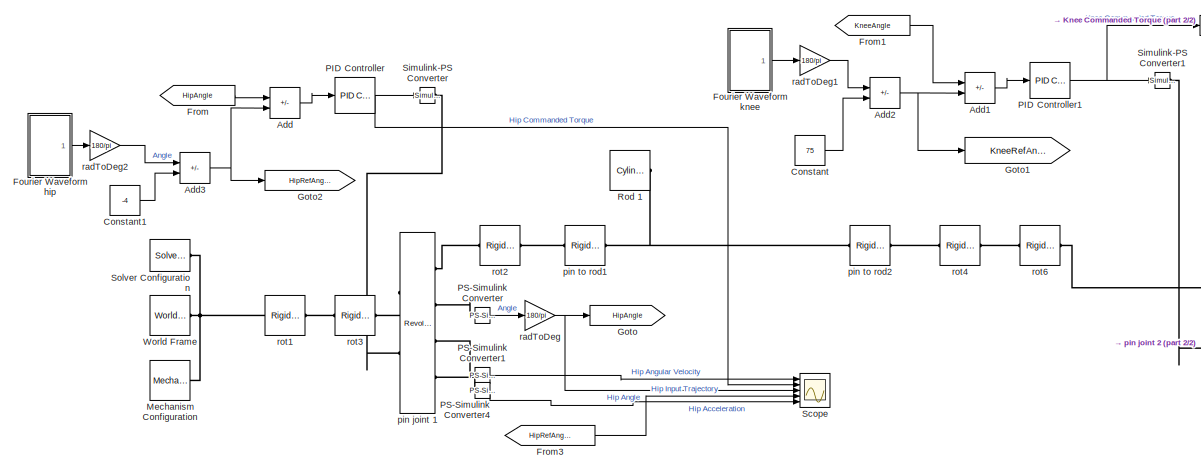
[diagram: root canvas - part 1/2, most of the canvas]
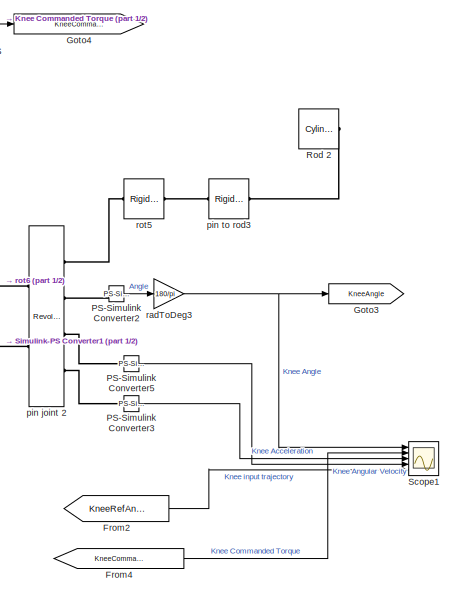
[diagram: root canvas - part 2/2, right side, full height]
MODEL slx_d215eb2f79ce
KIND model
CONFIG AbsTol = 1e-3
CONFIG EnableMultiTasking = on
CONFIG FixedStep = auto
CONFIG MaxStep = 1/60
CONFIG MinStep = auto
CONFIG RelTol = 1e-3
CONFIG SampleTimeConstraint = Unconstrained
CONFIG SolverName = VariableStepAuto
CONFIG StartTime = 0.0
CONFIG StopTime = 10.0
BLOCK [Sum] Add
  IconShape = rectangular
  Inputs = +-
  Ports = [2, 1]
BLOCK [Sum] Add1
  IconShape = rectangular
  Inputs = +-
  Ports = [2, 1]
BLOCK [Sum] Add2
  IconShape = rectangular
  Inputs = +-
  Ports = [2, 1]
BLOCK [Sum] Add3
  IconShape = rectangular
  Inputs = +-
  Ports = [2, 1]
BLOCK [Constant] Constant
  SampleTime = -1
  Value = 75
BLOCK [Constant] Constant1
  SampleTime = -1
  Value = -4
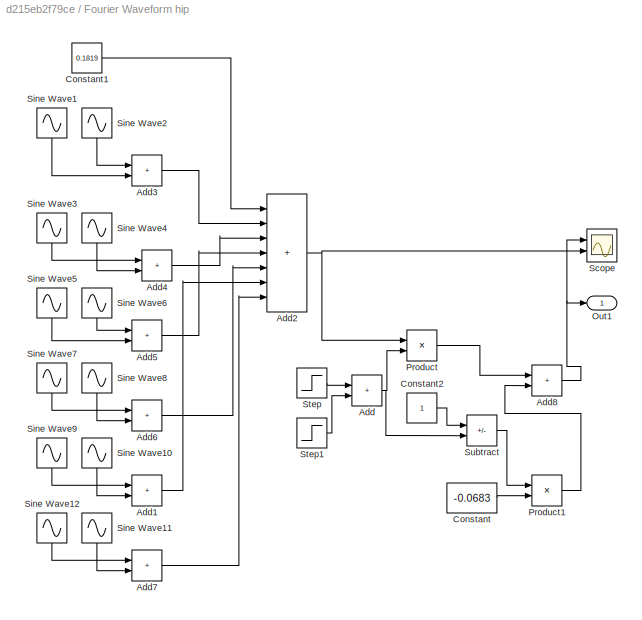
BLOCK [SubSystem] Fourier Waveform hip
  Ports = [0, 1]
  RequestExecContextInheritance = off
BLOCK [Sum] Fourier Waveform hip/Add
  IconShape = rectangular
  Ports = [2, 1]
BLOCK [Sum] Fourier Waveform hip/Add1
  IconShape = rectangular
  Ports = [2, 1]
BLOCK [Sum] Fourier Waveform hip/Add2
  IconShape = rectangular
  Inputs = +++++++
  Ports = [7, 1]
BLOCK [Sum] Fourier Waveform hip/Add3
  IconShape = rectangular
  Ports = [2, 1]
BLOCK [Sum] Fourier Waveform hip/Add4
  IconShape = rectangular
  Ports = [2, 1]
BLOCK [Sum] Fourier Waveform hip/Add5
  IconShape = rectangular
  Ports = [2, 1]
BLOCK [Sum] Fourier Waveform hip/Add6
  IconShape = rectangular
  Ports = [2, 1]
BLOCK [Sum] Fourier Waveform hip/Add7
  IconShape = rectangular
  Ports = [2, 1]
BLOCK [Sum] Fourier Waveform hip/Add8
  IconShape = rectangular
  Ports = [2, 1]
BLOCK [Constant] Fourier Waveform hip/Constant
  SampleTime = -1
  Value = -0.0683
BLOCK [Constant] Fourier Waveform hip/Constant1
  SampleTime = -1
  Value = 0.1819
BLOCK [Constant] Fourier Waveform hip/Constant2
  SampleTime = -1
BLOCK [Outport] Fourier Waveform hip/Out1
BLOCK [Product] Fourier Waveform hip/Product
  Ports = [2, 1]
BLOCK [Product] Fourier Waveform hip/Product1
  Ports = [2, 1]
BLOCK [Scope] Fourier Waveform hip/Scope
  Floating = off
  NumInputPorts = 2
  Ports = [2]
  ScopeSpecificationString = Simulink.scopes.TimeScopeBlockCfg('CurrentConfiguration', extmgr.ConfigurationSet(extmgr.Configuration('Core','General UI',true),extmgr.Configuration('Core','Source UI',true),extmgr.Configuration('Sources','WiredSimulink',true,'DataLoggingVariableName','ScopeData1'),extmgr.Configuration('Visuals','Time Domain',true,'SerializedDisplays',{struct('MinYLimReal','-0.1399','MaxYLimReal','0.62397','YLabe...<+1466ch>
BLOCK [Sin] Fourier Waveform hip/Sine Wave1
  Amplitude = -0.2755
  Frequency = 4.424
  NameLocation = left
  Phase = pi/2
  Ports = [0, 1]
  SampleTime = 0
BLOCK [Sin] Fourier Waveform hip/Sine Wave10
  Amplitude = 0.002542
  Frequency = 4.424*5
  NameLocation = left
  Ports = [0, 1]
  SampleTime = 0
BLOCK [Sin] Fourier Waveform hip/Sine Wave11
  Amplitude = 0.005374
  Frequency = 4.424*6
  NameLocation = left
  Ports = [0, 1]
  SampleTime = 0
BLOCK [Sin] Fourier Waveform hip/Sine Wave12
  Amplitude = 0.001063
  Frequency = 4.424*6
  NameLocation = left
  Phase = pi/2
  Ports = [0, 1]
  SampleTime = 0
BLOCK [Sin] Fourier Waveform hip/Sine Wave2
  Amplitude = 0.03057
  Frequency = 4.424
  NameLocation = left
  Ports = [0, 1]
  SampleTime = 0
BLOCK [Sin] Fourier Waveform hip/Sine Wave3
  Amplitude = -0.02595
  Frequency = 4.424*2
  NameLocation = left
  Phase = pi/2
  Ports = [0, 1]
  SampleTime = 0
BLOCK [Sin] Fourier Waveform hip/Sine Wave4
  Amplitude = -0.04813
  Frequency = 4.424*2
  NameLocation = top
  Ports = [0, 1]
  SampleTime = 0
BLOCK [Sin] Fourier Waveform hip/Sine Wave5
  Amplitude = 0.02598
  Frequency = 4.424*3
  NameLocation = left
  Phase = pi/2
  Ports = [0, 1]
  SampleTime = 0
BLOCK [Sin] Fourier Waveform hip/Sine Wave6
  Amplitude = -0.01268
  Frequency = 4.424*3
  NameLocation = left
  Ports = [0, 1]
  SampleTime = 0
BLOCK [Sin] Fourier Waveform hip/Sine Wave7
  Amplitude = 0.01088
  Frequency = 4.424*4
  NameLocation = left
  Phase = pi/2
  Ports = [0, 1]
  SampleTime = 0
BLOCK [Sin] Fourier Waveform hip/Sine Wave8
  Amplitude = 0.002473
  Frequency = 4.424*4
  NameLocation = left
  Ports = [0, 1]
  SampleTime = 0
BLOCK [Sin] Fourier Waveform hip/Sine Wave9
  Amplitude = 0.01099
  Frequency = 4.424*5
  NameLocation = left
  Phase = pi/2
  Ports = [0, 1]
  SampleTime = 0
BLOCK [Step] Fourier Waveform hip/Step
  SampleTime = 0
  Time = 0
BLOCK [Step] Fourier Waveform hip/Step1
  After = -1
  SampleTime = 0
  Time = 1.24
BLOCK [Sum] Fourier Waveform hip/Subtract
  IconShape = rectangular
  Inputs = +-
  Ports = [2, 1]
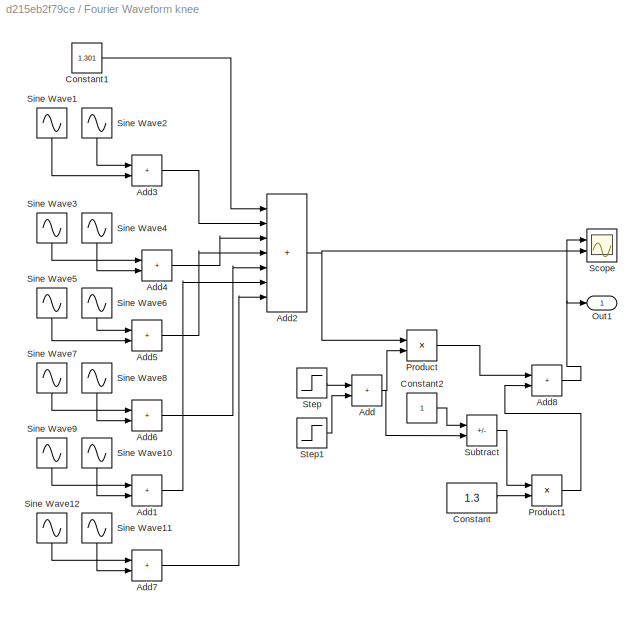
BLOCK [SubSystem] Fourier Waveform knee
  Ports = [0, 1]
  RequestExecContextInheritance = off
BLOCK [Sum] Fourier Waveform knee/Add
  IconShape = rectangular
  Ports = [2, 1]
BLOCK [Sum] Fourier Waveform knee/Add1
  IconShape = rectangular
  Ports = [2, 1]
BLOCK [Sum] Fourier Waveform knee/Add2
  IconShape = rectangular
  Inputs = +++++++
  Ports = [7, 1]
BLOCK [Sum] Fourier Waveform knee/Add3
  IconShape = rectangular
  Ports = [2, 1]
BLOCK [Sum] Fourier Waveform knee/Add4
  IconShape = rectangular
  Ports = [2, 1]
BLOCK [Sum] Fourier Waveform knee/Add5
  IconShape = rectangular
  Ports = [2, 1]
BLOCK [Sum] Fourier Waveform knee/Add6
  IconShape = rectangular
  Ports = [2, 1]
BLOCK [Sum] Fourier Waveform knee/Add7
  IconShape = rectangular
  Ports = [2, 1]
BLOCK [Sum] Fourier Waveform knee/Add8
  IconShape = rectangular
  Ports = [2, 1]
BLOCK [Constant] Fourier Waveform knee/Constant
  SampleTime = -1
  Value = 1.3
BLOCK [Constant] Fourier Waveform knee/Constant1
  SampleTime = -1
  Value = 1.301
BLOCK [Constant] Fourier Waveform knee/Constant2
  SampleTime = -1
BLOCK [Outport] Fourier Waveform knee/Out1
BLOCK [Product] Fourier Waveform knee/Product
  Ports = [2, 1]
BLOCK [Product] Fourier Waveform knee/Product1
  Ports = [2, 1]
BLOCK [Scope] Fourier Waveform knee/Scope
  Floating = off
  NumInputPorts = 2
  Ports = [2]
  ScopeSpecificationString = Simulink.scopes.TimeScopeBlockCfg('CurrentConfiguration', extmgr.ConfigurationSet(extmgr.Configuration('Core','General UI',true),extmgr.Configuration('Core','Source UI',true),extmgr.Configuration('Sources','WiredSimulink',true,'DataLoggingVariableName','ScopeData1'),extmgr.Configuration('Visuals','Time Domain',true,'SerializedDisplays',{struct('MinYLimReal','-0.1399','MaxYLimReal','0.62397','YLabe...<+1492ch>
BLOCK [Sin] Fourier Waveform knee/Sine Wave1
  Amplitude = -0.2874
  Frequency = 4.528
  NameLocation = left
  Phase = pi/2
  Ports = [0, 1]
  SampleTime = 0
BLOCK [Sin] Fourier Waveform knee/Sine Wave10
  Amplitude = -0.0008434
  Frequency = 4.528*5
  NameLocation = left
  Ports = [0, 1]
  SampleTime = 0
BLOCK [Sin] Fourier Waveform knee/Sine Wave11
  Amplitude = -0.005466
  Frequency = 4.528*6
  NameLocation = left
  Ports = [0, 1]
  SampleTime = 0
BLOCK [Sin] Fourier Waveform knee/Sine Wave12
  Amplitude = 0.005971
  Frequency = 4.528*6
  NameLocation = left
  Phase = pi/2
  Ports = [0, 1]
  SampleTime = 0
BLOCK [Sin] Fourier Waveform knee/Sine Wave2
  Amplitude = -0.3596
  Frequency = 4.528
  NameLocation = left
  Ports = [0, 1]
  SampleTime = 0
BLOCK [Sin] Fourier Waveform knee/Sine Wave3
  Amplitude = 0.2369
  Frequency = 4.528*2
  NameLocation = left
  Phase = pi/2
  Ports = [0, 1]
  SampleTime = 0
BLOCK [Sin] Fourier Waveform knee/Sine Wave4
  Amplitude = -0.01515
  Frequency = 4.528*2
  NameLocation = top
  Ports = [0, 1]
  SampleTime = 0
BLOCK [Sin] Fourier Waveform knee/Sine Wave5
  Amplitude = -0.04392
  Frequency = 4.528*3
  NameLocation = left
  Phase = pi/2
  Ports = [0, 1]
  SampleTime = 0
BLOCK [Sin] Fourier Waveform knee/Sine Wave6
  Amplitude = 0.04249
  Frequency = 4.528*3
  NameLocation = left
  Ports = [0, 1]
  SampleTime = 0
BLOCK [Sin] Fourier Waveform knee/Sine Wave7
  Amplitude = 0.006223
  Frequency = 4.528*4
  NameLocation = left
  Phase = pi/2
  Ports = [0, 1]
  SampleTime = 0
BLOCK [Sin] Fourier Waveform knee/Sine Wave8
  Amplitude = -0.002943
  Frequency = 4.528*4
  NameLocation = left
  Ports = [0, 1]
  SampleTime = 0
BLOCK [Sin] Fourier Waveform knee/Sine Wave9
  Amplitude = -0.01249
  Frequency = 4.528*5
  NameLocation = left
  Phase = pi/2
  Ports = [0, 1]
  SampleTime = 0
BLOCK [Step] Fourier Waveform knee/Step
  SampleTime = 0
  Time = 0
BLOCK [Step] Fourier Waveform knee/Step1
  After = -1
  SampleTime = 0
  Time = 1.24
BLOCK [Sum] Fourier Waveform knee/Subtract
  IconShape = rectangular
  Inputs = +-
  Ports = [2, 1]
BLOCK [From] From
  GotoTag = HipAngle
BLOCK [From] From1
  GotoTag = KneeAngle
BLOCK [From] From2
  GotoTag = KneeRefAngle
BLOCK [From] From3
  GotoTag = HipRefAngle
BLOCK [From] From4
  GotoTag = KneeCommandedTorq
BLOCK [Goto] Goto
  GotoTag = HipAngle
BLOCK [Goto] Goto1
  GotoTag = KneeRefAngle
BLOCK [Goto] Goto2
  GotoTag = HipRefAngle
BLOCK [Goto] Goto3
  GotoTag = KneeAngle
BLOCK [Goto] Goto4
  GotoTag = KneeCommandedTorq
BLOCK [Reference] Mechanism Configuration  REF=sm_lib/Utilities/Mechanism
Configuration
  Ports = [0, 0, 0, 0, 0, 0, 1]
  SourceBlock = sm_lib/Utilities/Mechanism\nConfiguration
  SourceProductBaseCode = MS
  SourceType = Mechanism\nConfiguration
BLOCK [Reference] PID Controller  REF=slpidlib/PID Controller
  Ports = [1, 1]
  SourceBlock = slpidlib/PID Controller
  SourceProductBaseCode = SL
  SourceType = PID 1dof
BLOCK [Reference] PID Controller1  REF=slpidlib/PID Controller
  Ports = [1, 1]
  SourceBlock = slpidlib/PID Controller
  SourceProductBaseCode = SL
  SourceType = PID 1dof
BLOCK [Reference] PS-Simulink Converter  REF=nesl_utility/PS-Simulink
Converter
  Ports = [0, 1, 0, 0, 0, 1]
  SourceBlock = nesl_utility/PS-Simulink\nConverter
  SourceProductBaseCode = SS,PW,VE
  SourceType = PS-Simulink\nConverter
BLOCK [Reference] PS-Simulink Converter1  REF=nesl_utility/PS-Simulink
Converter
  Ports = [0, 1, 0, 0, 0, 1]
  SourceBlock = nesl_utility/PS-Simulink\nConverter
  SourceProductBaseCode = SS,PW,VE
  SourceType = PS-Simulink\nConverter
BLOCK [Reference] PS-Simulink Converter2  REF=nesl_utility/PS-Simulink
Converter
  Ports = [0, 1, 0, 0, 0, 1]
  SourceBlock = nesl_utility/PS-Simulink\nConverter
  SourceProductBaseCode = SS,PW,VE
  SourceType = PS-Simulink\nConverter
BLOCK [Reference] PS-Simulink Converter3  REF=nesl_utility/PS-Simulink
Converter
  Ports = [0, 1, 0, 0, 0, 1]
  SourceBlock = nesl_utility/PS-Simulink\nConverter
  SourceProductBaseCode = SS,PW,VE
  SourceType = PS-Simulink\nConverter
BLOCK [Reference] PS-Simulink Converter4  REF=nesl_utility/PS-Simulink
Converter
  Ports = [0, 1, 0, 0, 0, 1]
  SourceBlock = nesl_utility/PS-Simulink\nConverter
  SourceProductBaseCode = SS,PW,VE
  SourceType = PS-Simulink\nConverter
BLOCK [Reference] PS-Simulink Converter5  REF=nesl_utility/PS-Simulink
Converter
  Ports = [0, 1, 0, 0, 0, 1]
  SourceBlock = nesl_utility/PS-Simulink\nConverter
  SourceProductBaseCode = SS,PW,VE
  SourceType = PS-Simulink\nConverter
BLOCK [Reference] Rod 1  REF=sm_lib/Body Elements/Cylindrical Solid
  Ports = [0, 0, 0, 0, 0, 0, 1]
  SourceBlock = sm_lib/Body Elements/Cylindrical Solid
  SourceProductBaseCode = MS
  SourceType = Cylindrical Solid
BLOCK [Reference] Rod 2  REF=sm_lib/Body Elements/Cylindrical Solid
  Ports = [0, 0, 0, 0, 0, 0, 1]
  SourceBlock = sm_lib/Body Elements/Cylindrical Solid
  SourceProductBaseCode = MS
  SourceType = Cylindrical Solid
BLOCK [Scope] Scope
  Floating = off
  NumInputPorts = 5
  Ports = [5]
  ScopeSpecificationString = Simulink.scopes.TimeScopeBlockCfg('CurrentConfiguration', extmgr.ConfigurationSet(extmgr.Configuration('Core','General UI',true),extmgr.Configuration('Core','Source UI',true),extmgr.Configuration('Sources','WiredSimulink',true),extmgr.Configuration('Visuals','Time Domain',true,'SerializedDisplays',{struct('MinYLimReal','-20.27818','MaxYLimReal','38.75469','YLabelReal','','MinYLimMag','0.00000','Ma...<+1519ch>
BLOCK [Scope] Scope1
  Floating = off
  NumInputPorts = 5
  Ports = [5]
  ScopeSpecificationString = Simulink.scopes.TimeScopeBlockCfg('CurrentConfiguration', extmgr.ConfigurationSet(extmgr.Configuration('Core','General UI',true),extmgr.Configuration('Core','Source UI',true),extmgr.Configuration('Sources','WiredSimulink',true,'DataLoggingVariableName','ScopeData1'),extmgr.Configuration('Visuals','Time Domain',true,'SerializedDisplays',{struct('MinYLimReal','-45.29926','MaxYLimReal','50.30927','YL...<+1565ch>
BLOCK [Reference] Simulink-PS Converter  REF=nesl_utility/Simulink-PS
Converter
  Ports = [1, 0, 0, 0, 0, 0, 1]
  SourceBlock = nesl_utility/Simulink-PS\nConverter
  SourceProductBaseCode = SS,PW,VE
  SourceType = Simulink-PS\nConverter
BLOCK [Reference] Simulink-PS Converter1  REF=nesl_utility/Simulink-PS
Converter
  Ports = [1, 0, 0, 0, 0, 0, 1]
  SourceBlock = nesl_utility/Simulink-PS\nConverter
  SourceProductBaseCode = SS,PW,VE
  SourceType = Simulink-PS\nConverter
BLOCK [Reference] Solver Configuration  REF=nesl_utility/Solver
Configuration
  Ports = [0, 0, 0, 0, 0, 0, 1]
  SourceBlock = nesl_utility/Solver\nConfiguration
  SourceProductBaseCode = SS,PW,VE
  SourceType = Solver\nConfiguration
BLOCK [Reference] World Frame  REF=sm_lib/Frames and
Transforms/World Frame
  Ports = [0, 0, 0, 0, 0, 0, 1]
  SourceBlock = sm_lib/Frames and\nTransforms/World Frame
  SourceProductBaseCode = MS
  SourceType = World Frame
BLOCK [Reference] pin joint 1  REF=sm_lib/Joints/Revolute Joint
  AttributesFormatString = %<PositionTargetValue> %<PositionTargetValueUnits>
  Ports = [0, 0, 0, 0, 0, 2, 4]
  SourceBlock = sm_lib/Joints/Revolute Joint
  SourceProductBaseCode = MS
  SourceType = Revolute Joint
BLOCK [Reference] pin joint 2  REF=sm_lib/Joints/Revolute Joint
  AttributesFormatString = %<PositionTargetValue> %<PositionTargetValueUnits>
  Ports = [0, 0, 0, 0, 0, 2, 4]
  SourceBlock = sm_lib/Joints/Revolute Joint
  SourceProductBaseCode = MS
  SourceType = Revolute Joint
BLOCK [Reference] pin to rod1  REF=sm_lib/Frames and
Transforms/Rigid
Transform
  AttributesFormatString = %<TranslationStandardOffset> %<TranslationLengthUnit>\n%<TranslationStandardAxis>
  Ports = [0, 0, 0, 0, 0, 1, 1]
  SourceBlock = sm_lib/Frames and\nTransforms/Rigid\nTransform
  SourceProductBaseCode = MS
  SourceType = Rigid\nTransform
BLOCK [Reference] pin to rod2  REF=sm_lib/Frames and
Transforms/Rigid
Transform
  AttributesFormatString = %<TranslationStandardOffset> %<TranslationLengthUnit>\n%<TranslationStandardAxis>
  Ports = [0, 0, 0, 0, 0, 1, 1]
  SourceBlock = sm_lib/Frames and\nTransforms/Rigid\nTransform
  SourceProductBaseCode = MS
  SourceType = Rigid\nTransform
BLOCK [Reference] pin to rod3  REF=sm_lib/Frames and
Transforms/Rigid
Transform
  AttributesFormatString = %<TranslationStandardOffset> %<TranslationLengthUnit>\n%<TranslationStandardAxis>
  Ports = [0, 0, 0, 0, 0, 1, 1]
  SourceBlock = sm_lib/Frames and\nTransforms/Rigid\nTransform
  SourceProductBaseCode = MS
  SourceType = Rigid\nTransform
BLOCK [Gain] radToDeg
  Gain = 180/pi
BLOCK [Gain] radToDeg1
  Gain = 180/pi
BLOCK [Gain] radToDeg2
  Gain = 180/pi
BLOCK [Gain] radToDeg3
  Gain = 180/pi
BLOCK [Reference] rot1  REF=sm_lib/Frames and
Transforms/Rigid
Transform
  AttributesFormatString = %<RotationAngle> %<RotationAngleUnits>\nabout %<RotationStandardAxis>
  Ports = [0, 0, 0, 0, 0, 1, 1]
  SourceBlock = sm_lib/Frames and\nTransforms/Rigid\nTransform
  SourceProductBaseCode = MS
  SourceType = Rigid\nTransform
BLOCK [Reference] rot2  REF=sm_lib/Frames and
Transforms/Rigid
Transform
  AttributesFormatString = %<RotationAngle> %<RotationAngleUnits>\nabout %<RotationStandardAxis>
  Ports = [0, 0, 0, 0, 0, 1, 1]
  SourceBlock = sm_lib/Frames and\nTransforms/Rigid\nTransform
  SourceProductBaseCode = MS
  SourceType = Rigid\nTransform
BLOCK [Reference] rot3  REF=sm_lib/Frames and
Transforms/Rigid
Transform
  AttributesFormatString = %<RotationAngle> %<RotationAngleUnits>\nabout %<RotationStandardAxis>
  Ports = [0, 0, 0, 0, 0, 1, 1]
  SourceBlock = sm_lib/Frames and\nTransforms/Rigid\nTransform
  SourceProductBaseCode = MS
  SourceType = Rigid\nTransform
BLOCK [Reference] rot4  REF=sm_lib/Frames and
Transforms/Rigid
Transform
  AttributesFormatString = %<RotationAngle> %<RotationAngleUnits>\nabout %<RotationStandardAxis>
  Ports = [0, 0, 0, 0, 0, 1, 1]
  SourceBlock = sm_lib/Frames and\nTransforms/Rigid\nTransform
  SourceProductBaseCode = MS
  SourceType = Rigid\nTransform
BLOCK [Reference] rot5  REF=sm_lib/Frames and
Transforms/Rigid
Transform
  AttributesFormatString = %<RotationAngle> %<RotationAngleUnits>\nabout %<RotationStandardAxis>
  Ports = [0, 0, 0, 0, 0, 1, 1]
  SourceBlock = sm_lib/Frames and\nTransforms/Rigid\nTransform
  SourceProductBaseCode = MS
  SourceType = Rigid\nTransform
BLOCK [Reference] rot6  REF=sm_lib/Frames and
Transforms/Rigid
Transform
  AttributesFormatString = %<RotationAngle> %<RotationAngleUnits>\nabout %<RotationStandardAxis>
  Ports = [0, 0, 0, 0, 0, 1, 1]
  SourceBlock = sm_lib/Frames and\nTransforms/Rigid\nTransform
  SourceProductBaseCode = MS
  SourceType = Rigid\nTransform
LINE Add1:1 -> PID Controller1:1
NET Add2:1 -> Add1:2, Goto1:1
NET Add3:1 -> Add:2, Goto2:1
LINE Add:1 -> PID Controller:1
LINE Constant1:1 -> Add3:2
LINE Constant:1 -> Add2:2
LINE Fourier Waveform hip/Add1:1 -> Fourier Waveform hip/Add2:6
NET Fourier Waveform hip/Add2:1 -> Fourier Waveform hip/Product:1, Fourier Waveform hip/Scope:2
LINE Fourier Waveform hip/Add3:1 -> Fourier Waveform hip/Add2:2
LINE Fourier Waveform hip/Add4:1 -> Fourier Waveform hip/Add2:3
LINE Fourier Waveform hip/Add5:1 -> Fourier Waveform hip/Add2:4
LINE Fourier Waveform hip/Add6:1 -> Fourier Waveform hip/Add2:5
LINE Fourier Waveform hip/Add7:1 -> Fourier Waveform hip/Add2:7
NET Fourier Waveform hip/Add8:1 -> Fourier Waveform hip/Out1:1, Fourier Waveform hip/Scope:1
NET Fourier Waveform hip/Add:1 -> Fourier Waveform hip/Product:2, Fourier Waveform hip/Subtract:2
LINE Fourier Waveform hip/Constant1:1 -> Fourier Waveform hip/Add2:1
LINE Fourier Waveform hip/Constant2:1 -> Fourier Waveform hip/Subtract:1
LINE Fourier Waveform hip/Constant:1 -> Fourier Waveform hip/Product1:2
LINE Fourier Waveform hip/Product1:1 -> Fourier Waveform hip/Add8:2
LINE Fourier Waveform hip/Product:1 -> Fourier Waveform hip/Add8:1
LINE Fourier Waveform hip/Sine Wave10:1 -> Fourier Waveform hip/Add1:2
LINE Fourier Waveform hip/Sine Wave11:1 -> Fourier Waveform hip/Add7:2
LINE Fourier Waveform hip/Sine Wave12:1 -> Fourier Waveform hip/Add7:1
LINE Fourier Waveform hip/Sine Wave1:1 -> Fourier Waveform hip/Add3:2
LINE Fourier Waveform hip/Sine Wave2:1 -> Fourier Waveform hip/Add3:1
LINE Fourier Waveform hip/Sine Wave3:1 -> Fourier Waveform hip/Add4:1
LINE Fourier Waveform hip/Sine Wave4:1 -> Fourier Waveform hip/Add4:2
LINE Fourier Waveform hip/Sine Wave5:1 -> Fourier Waveform hip/Add5:2
LINE Fourier Waveform hip/Sine Wave6:1 -> Fourier Waveform hip/Add5:1
LINE Fourier Waveform hip/Sine Wave7:1 -> Fourier Waveform hip/Add6:1
LINE Fourier Waveform hip/Sine Wave8:1 -> Fourier Waveform hip/Add6:2
LINE Fourier Waveform hip/Sine Wave9:1 -> Fourier Waveform hip/Add1:1
LINE Fourier Waveform hip/Step1:1 -> Fourier Waveform hip/Add:2
LINE Fourier Waveform hip/Step:1 -> Fourier Waveform hip/Add:1
LINE Fourier Waveform hip/Subtract:1 -> Fourier Waveform hip/Product1:1
LINE Fourier Waveform hip:1 -> radToDeg2:1
LINE Fourier Waveform knee/Add1:1 -> Fourier Waveform knee/Add2:6
NET Fourier Waveform knee/Add2:1 -> Fourier Waveform knee/Product:1, Fourier Waveform knee/Scope:2
LINE Fourier Waveform knee/Add3:1 -> Fourier Waveform knee/Add2:2
LINE Fourier Waveform knee/Add4:1 -> Fourier Waveform knee/Add2:3
LINE Fourier Waveform knee/Add5:1 -> Fourier Waveform knee/Add2:4
LINE Fourier Waveform knee/Add6:1 -> Fourier Waveform knee/Add2:5
LINE Fourier Waveform knee/Add7:1 -> Fourier Waveform knee/Add2:7
NET Fourier Waveform knee/Add8:1 -> Fourier Waveform knee/Out1:1, Fourier Waveform knee/Scope:1
NET Fourier Waveform knee/Add:1 -> Fourier Waveform knee/Product:2, Fourier Waveform knee/Subtract:2
LINE Fourier Waveform knee/Constant1:1 -> Fourier Waveform knee/Add2:1
LINE Fourier Waveform knee/Constant2:1 -> Fourier Waveform knee/Subtract:1
LINE Fourier Waveform knee/Constant:1 -> Fourier Waveform knee/Product1:2
LINE Fourier Waveform knee/Product1:1 -> Fourier Waveform knee/Add8:2
LINE Fourier Waveform knee/Product:1 -> Fourier Waveform knee/Add8:1
LINE Fourier Waveform knee/Sine Wave10:1 -> Fourier Waveform knee/Add1:2
LINE Fourier Waveform knee/Sine Wave11:1 -> Fourier Waveform knee/Add7:2
LINE Fourier Waveform knee/Sine Wave12:1 -> Fourier Waveform knee/Add7:1
LINE Fourier Waveform knee/Sine Wave1:1 -> Fourier Waveform knee/Add3:2
LINE Fourier Waveform knee/Sine Wave2:1 -> Fourier Waveform knee/Add3:1
LINE Fourier Waveform knee/Sine Wave3:1 -> Fourier Waveform knee/Add4:1
LINE Fourier Waveform knee/Sine Wave4:1 -> Fourier Waveform knee/Add4:2
LINE Fourier Waveform knee/Sine Wave5:1 -> Fourier Waveform knee/Add5:2
LINE Fourier Waveform knee/Sine Wave6:1 -> Fourier Waveform knee/Add5:1
LINE Fourier Waveform knee/Sine Wave7:1 -> Fourier Waveform knee/Add6:1
LINE Fourier Waveform knee/Sine Wave8:1 -> Fourier Waveform knee/Add6:2
LINE Fourier Waveform knee/Sine Wave9:1 -> Fourier Waveform knee/Add1:1
LINE Fourier Waveform knee/Step1:1 -> Fourier Waveform knee/Add:2
LINE Fourier Waveform knee/Step:1 -> Fourier Waveform knee/Add:1
LINE Fourier Waveform knee/Subtract:1 -> Fourier Waveform knee/Product1:1
LINE Fourier Waveform knee:1 -> radToDeg1:1
LINE From1:1 -> Add1:1
LINE From2:1 -> Scope1:5
LINE From3:1 -> Scope:4
LINE From4:1 -> Scope1:2
LINE From:1 -> Add:1
NET PID Controller1:1 -> Goto4:1, Simulink-PS Converter1:1
NET PID Controller:1 -> Scope:2, Simulink-PS Converter:1
LINE PS-Simulink Converter1:1 -> Scope:1
LINE PS-Simulink Converter2:1 -> radToDeg3:1
LINE PS-Simulink Converter3:1 -> Scope1:3
LINE PS-Simulink Converter4:1 -> Scope:5
LINE PS-Simulink Converter5:1 -> Scope1:4
LINE PS-Simulink Converter:1 -> radToDeg:1
LINE radToDeg1:1 -> Add2:1
LINE radToDeg2:1 -> Add3:1
NET radToDeg3:1 -> Goto3:1, Scope1:1
NET radToDeg:1 -> Goto:1, Scope:3
PNET net1: Mechanism Configuration:RConn1 -- Solver Configuration:RConn1 -- World Frame:RConn1 -- rot1:LConn1
PLINE PS-Simulink Converter1:LConn1 -- pin joint 1:RConn3
PLINE PS-Simulink Converter2:LConn1 -- pin joint 2:RConn2
PLINE PS-Simulink Converter3:LConn1 -- pin joint 2:RConn4
PLINE PS-Simulink Converter4:LConn1 -- pin joint 1:RConn4
PLINE PS-Simulink Converter5:LConn1 -- pin joint 2:RConn3
PLINE PS-Simulink Converter:LConn1 -- pin joint 1:RConn2
PNET net2: Rod 1:RConn1 -- pin to rod1:RConn1 -- pin to rod2:LConn1
PLINE Rod 2:RConn1 -- pin to rod3:RConn1
PLINE Simulink-PS Converter1:RConn1 -- pin joint 2:LConn2
PLINE Simulink-PS Converter:RConn1 -- pin joint 1:LConn2
PLINE pin joint 1:LConn1 -- rot3:RConn1
PLINE pin joint 1:RConn1 -- rot2:LConn1
PLINE pin joint 2:LConn1 -- rot6:RConn1
PLINE pin joint 2:RConn1 -- rot5:LConn1
PLINE pin to rod1:LConn1 -- rot2:RConn1
PLINE pin to rod2:RConn1 -- rot4:LConn1
PLINE pin to rod3:LConn1 -- rot5:RConn1
PLINE rot1:RConn1 -- rot3:LConn1
PLINE rot4:RConn1 -- rot6:LConn1
note: NET lines group one-source signal fan-out (src -> all destinations, sorted); 1:1 wires keep LINE; PNET lines group multi-terminal physical nets as a canonical sorted terminal list (undirected conserving connections); 2-terminal nets keep the pairwise PLINE form
